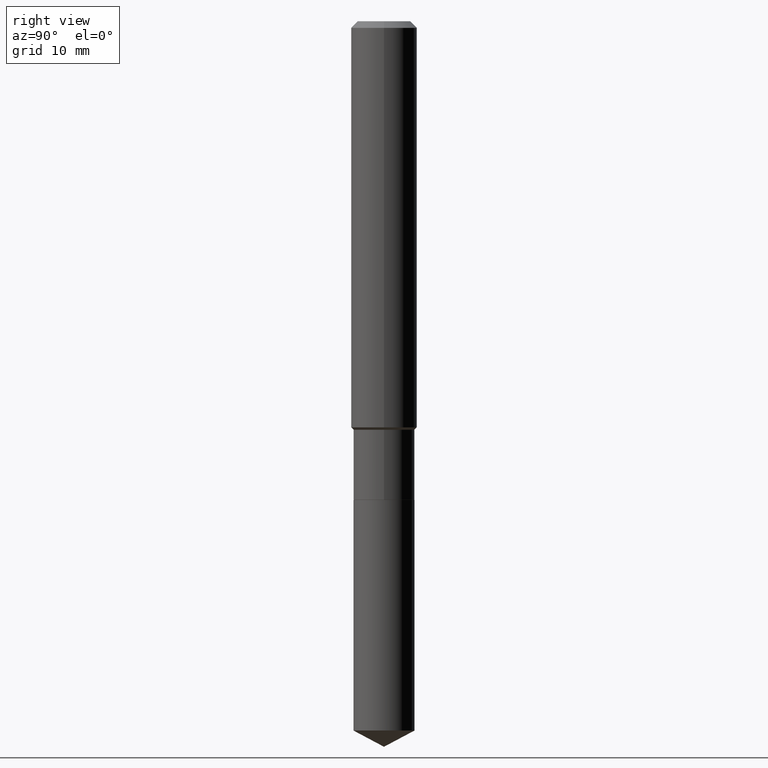
[diagram: clean part render]
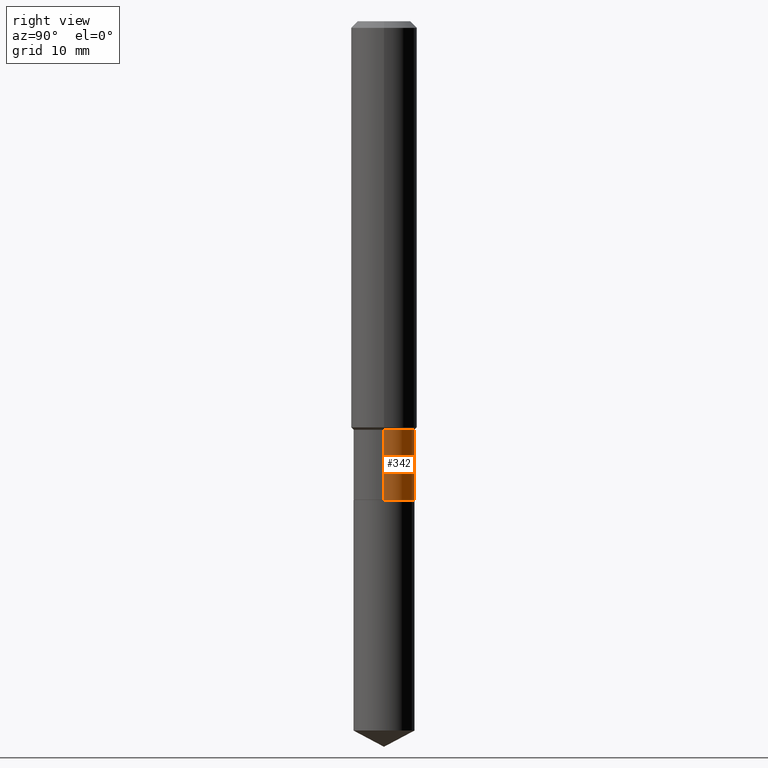
[diagram: same view with one face highlighted and labeled with its STEP entity id]
A machine part, right view. The second image highlights one B-rep face of the part: STEP entity #342.
In plain terms, the highlighted cylindrical surface (edge-blend (fillet) strip) has radius 2.7788 mm, axis along (-0, 0, 1).
Its self-contained STEP definition (entity closure, byte-faithful):
#5 = CARTESIAN_POINT ( 'NONE',  ( 3.578209957210091410E-29, -5.108735494995289992E-15, -1.463199999999999834 ) ) ;
#16 = VERTEX_POINT ( 'NONE', #453 ) ;
#22 = VERTEX_POINT ( 'NONE', #303 ) ;
#27 = CIRCLE ( 'NONE', #146, 0.1093999999999999695 ) ;
#42 = ORIENTED_EDGE ( 'NONE', *, *, #242, .T. ) ;
#45 = AXIS2_PLACEMENT_3D ( 'NONE', #239, #80, #455 ) ;
#56 = CYLINDRICAL_SURFACE ( 'NONE', #255, 0.1093999999999999834 ) ;
#80 = DIRECTION ( 'NONE',  ( -2.445468806185136597E-29, 3.491481338843145583E-15, 1.000000000000000000 ) ) ;
#91 = VERTEX_POINT ( 'NONE', #481 ) ;
#99 = LINE ( 'NONE', #213, #172 ) ;
#100 = EDGE_LOOP ( 'NONE', ( #42, #254, #388, #393 ) ) ;
#146 = AXIS2_PLACEMENT_3D ( 'NONE', #5, #271, #422 ) ;
#164 = CIRCLE ( 'NONE', #45, 0.1093999999999999972 ) ;
#172 = VECTOR ( 'NONE', #287, 39.37007874015748143 ) ;
#185 = CARTESIAN_POINT ( 'NONE',  ( 0.1093999999999999834, -7.639361169388774732E-16, 5.334537392720753208E-30 ) ) ;
#187 = EDGE_CURVE ( 'NONE', #288, #22, #27, .T. ) ;
#213 = CARTESIAN_POINT ( 'NONE',  ( -0.1093999999999999834, 7.773337529215494852E-16, -5.381314988738866015E-30 ) ) ;
#239 = CARTESIAN_POINT ( 'NONE',  ( 4.192267174443178826E-29, -5.985446459178803005E-15, -1.714299999999999713 ) ) ;
#242 = EDGE_CURVE ( 'NONE', #16, #91, #164, .T. ) ;
#244 = CARTESIAN_POINT ( 'NONE',  ( 0.000000000000000000, 0.000000000000000000, 0.000000000000000000 ) ) ;
#250 = DIRECTION ( 'NONE',  ( -2.445468806185136597E-29, 3.491481338843145583E-15, 1.000000000000000000 ) ) ;
#254 = ORIENTED_EDGE ( 'NONE', *, *, #381, .T. ) ;
#255 = AXIS2_PLACEMENT_3D ( 'NONE', #244, #250, #401 ) ;
#271 = DIRECTION ( 'NONE',  ( -2.445468806185136597E-29, 3.491481338843145583E-15, 1.000000000000000000 ) ) ;
#287 = DIRECTION ( 'NONE',  ( -2.445468806185136877E-29, 3.491481338843145188E-15, 1.000000000000000000 ) ) ;
#288 = VERTEX_POINT ( 'NONE', #421 ) ;
#303 = CARTESIAN_POINT ( 'NONE',  ( -0.1093999999999999695, -4.769757224165497309E-15, -1.463199999999999834 ) ) ;
#319 = FACE_OUTER_BOUND ( 'NONE', #100, .T. ) ;
#340 = DIRECTION ( 'NONE',  ( -2.445468806185136877E-29, 3.491481338843145188E-15, 1.000000000000000000 ) ) ;
#342 = ADVANCED_FACE ( 'NONE', ( #319 ), #56, .T. ) ;
#381 = EDGE_CURVE ( 'NONE', #91, #22, #99, .T. ) ;
#388 = ORIENTED_EDGE ( 'NONE', *, *, #187, .F. ) ;
#393 = ORIENTED_EDGE ( 'NONE', *, *, #487, .F. ) ;
#401 = DIRECTION ( 'NONE',  ( 1.000000000000000000, -6.982962677686266711E-15, 4.876176775795935793E-29 ) ) ;
#410 = LINE ( 'NONE', #185, #477 ) ;
#421 = CARTESIAN_POINT ( 'NONE',  ( 0.1093999999999999695, -5.872671611934168353E-15, -1.463199999999999834 ) ) ;
#422 = DIRECTION ( 'NONE',  ( 1.000000000000000000, -6.982962677686271444E-15, 0.000000000000000000 ) ) ;
#453 = CARTESIAN_POINT ( 'NONE',  ( 0.1093999999999999972, -6.749382576117681366E-15, -1.714299999999999713 ) ) ;
#455 = DIRECTION ( 'NONE',  ( 1.000000000000000000, -6.982962677686269866E-15, 0.000000000000000000 ) ) ;
#477 = VECTOR ( 'NONE', #340, 39.37007874015748143 ) ;
#481 = CARTESIAN_POINT ( 'NONE',  ( -0.1093999999999999972, -4.769757224165497309E-15, -1.714299999999999713 ) ) ;
#487 = EDGE_CURVE ( 'NONE', #16, #288, #410, .T. ) ;